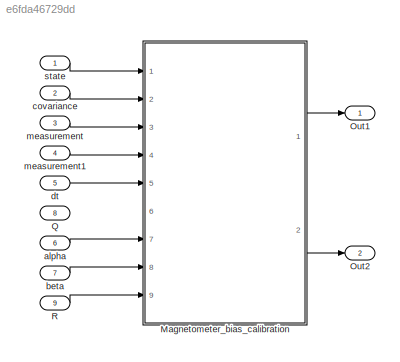
MODEL slx_e6fda46729dd
KIND model
CONFIG AbsTol = auto
CONFIG EnableMultiTasking = off
CONFIG FixedStep = auto
CONFIG MaxStep = auto
CONFIG MinStep = auto
CONFIG RelTol = 1e-3
CONFIG SampleTimeConstraint = Unconstrained
CONFIG Solver = VariableStepAuto
CONFIG SolverName = VariableStepAuto
CONFIG StartTime = 0.0
CONFIG StopTime = 10.0
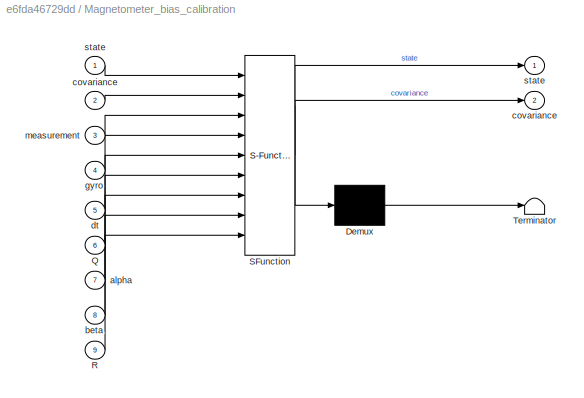
BLOCK [SubSystem] Magnetometer_bias_calibration
  ErrorFcn = Stateflow.Translate.translate
  PermitHierarchicalResolution = ExplicitOnly
  Ports = [9, 2]
  RequestExecContextInheritance = off
  SFBlockType = MATLAB Function
  TreatAsAtomicUnit = on
  Variant = off
BLOCK [Demux] Magnetometer_bias_calibration/ Demux 
  Outputs = 1
  Ports = [1, 1]
BLOCK [S-Function] Magnetometer_bias_calibration/ SFunction 
  EnableBusSupport = on
  FunctionName = sf_sfun
  PortCounts = [9 3]
  Ports = [9, 3]
  SFcnIsStateOwnerBlock = off
  SFunctionDeploymentMode = off
  Tag = Stateflow S-Function ava5 5
BLOCK [Terminator] Magnetometer_bias_calibration/ Terminator 
BLOCK [Inport] Magnetometer_bias_calibration/Q
  IconDisplay = Port number
  Port = 6
BLOCK [Inport] Magnetometer_bias_calibration/R
  IconDisplay = Port number
  Port = 9
BLOCK [Inport] Magnetometer_bias_calibration/alpha
  IconDisplay = Port number
  Port = 7
BLOCK [Inport] Magnetometer_bias_calibration/beta
  IconDisplay = Port number
  Port = 8
BLOCK [Outport] Magnetometer_bias_calibration/covariance
  IconDisplay = Port number
  Port = 2
BLOCK [Inport] Magnetometer_bias_calibration/covariance 
  IconDisplay = Port number
  Port = 2
BLOCK [Inport] Magnetometer_bias_calibration/dt
  IconDisplay = Port number
  Port = 5
BLOCK [Inport] Magnetometer_bias_calibration/gyro
  IconDisplay = Port number
  Port = 4
BLOCK [Inport] Magnetometer_bias_calibration/measurement
  IconDisplay = Port number
  Port = 3
BLOCK [Outport] Magnetometer_bias_calibration/state
  IconDisplay = Port number
BLOCK [Inport] Magnetometer_bias_calibration/state 
  IconDisplay = Port number
BLOCK [Outport] Out1
  IconDisplay = Port number
BLOCK [Outport] Out2
  IconDisplay = Port number
  Port = 2
BLOCK [Inport] Q
  IconDisplay = Port number
  Port = 8
  PortDimensions = [6, 6]
BLOCK [Inport] R
  IconDisplay = Port number
  Port = 9
  PortDimensions = [3, 3]
BLOCK [Inport] alpha
  IconDisplay = Port number
  Port = 6
BLOCK [Inport] beta
  IconDisplay = Port number
  Port = 7
BLOCK [Inport] covariance
  IconDisplay = Port number
  Port = 2
  PortDimensions = [6, 6]
BLOCK [Inport] dt
  IconDisplay = Port number
  Port = 5
BLOCK [Inport] measurement
  IconDisplay = Port number
  Port = 3
  PortDimensions = 3
BLOCK [Inport] measurement1
  IconDisplay = Port number
  Port = 4
  PortDimensions = 3
BLOCK [Inport] state
  IconDisplay = Port number
  PortDimensions = 6
LINE Magnetometer_bias_calibration:1 -> Out1:1
LINE Magnetometer_bias_calibration:2 -> Out2:1
LINE R:1 -> Magnetometer_bias_calibration:9
LINE alpha:1 -> Magnetometer_bias_calibration:7
LINE beta:1 -> Magnetometer_bias_calibration:8
LINE covariance:1 -> Magnetometer_bias_calibration:2
LINE dt:1 -> Magnetometer_bias_calibration:5
LINE measurement1:1 -> Magnetometer_bias_calibration:4
LINE measurement:1 -> Magnetometer_bias_calibration:3
LINE state:1 -> Magnetometer_bias_calibration:1
CHART Magnetometer_bias_calibration states=1 transitions=1
  STATE_LABEL 'eML_blk_kernel()'
  STATE_LABEL 'SCRIPT:\nfunction [state, covariance]=filter_byAngularVelocity(state,covariance,measurement, gyro,dt,Q,alpha,beta,R)\n    \nz=measurement;\nw=gyro;\nUKFx=state; UKFP=covariance;\n[X,W] = computeSigmaPoints(UKFx,UKFP);\n\n% Propagate sigma points through transition function\nXkk1 = X;\nfor i=1:size(X,2)\n    Xkk1(1:size(UKFx,1),i) = X(:,i)+ dt*[-skew(w) skew(w);zeros(3,3) zeros(3,3)]* X(:,i);\nend\n\n% Recombine...<+3591ch>'
